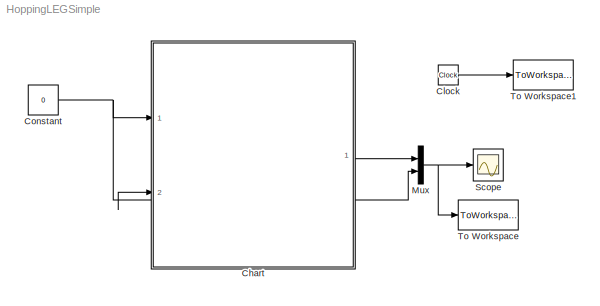
MODEL HoppingLEGSimple
KIND model
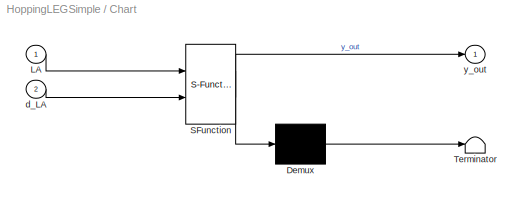
BLOCK [SubSystem] Chart
  ErrorFcn = Stateflow.Translate.translate
  FunctionWithSeparateData = off
  MaskDescription = Stateflow diagram
  MaskDisplay = plot(sf('Private','sfblk','xIcon'),sf('Private','sfblk','yIcon'));text(0.5,0,sf('Private', 'sfblk', 'tIcon'),'HorizontalAl','Center','VerticalAl','Bottom');
  MaskHideContents = off
  MaskIconFrame = off
  MaskIconOpaque = off
  MaskIconRotate = none
  MaskIconUnits = autoscale
  MaskPortRotate = default
  MaskSelfModifiable = on
  MaskType = Stateflow
  MinAlgLoopOccurrences = off
  Opaque = off
  PermitHierarchicalResolution = ExplicitOnly
  Ports = [2, 1]
  PropExecContextOutsideSubsystem = off
  RTWSystemCode = Auto
  RequestExecContextInheritance = off
  SID = 1
  TreatAsAtomicUnit = on
BLOCK [Demux] Chart/ Demux 
  Outputs = 1
  Ports = [1, 1]
  SID = 1::14
BLOCK [S-Function] Chart/ SFunction 
  EnableBusSupport = on
  FunctionName = sf_sfun
  PortCounts = [2 2]
  Ports = [2, 2]
  SID = 1::13
  Tag = Stateflow S-Function HoppingLEGSimple 1
BLOCK [Terminator] Chart/ Terminator 
  SID = 1::18
BLOCK [Inport] Chart/LA
  IconDisplay = Port number
  SID = 1::25
BLOCK [Inport] Chart/d_LA
  IconDisplay = Port number
  Port = 2
  SID = 1::24
BLOCK [Outport] Chart/y_out
  IconDisplay = Port number
  SID = 1::20
BLOCK [Clock] Clock
  Decimation = 10
  SID = 14
BLOCK [Constant] Constant
  SID = 19
  Value = 0
BLOCK [Mux] Mux
  DisplayOption = bar
  Inputs = 2
  Ports = [2, 1]
  SID = 7
BLOCK [Scope] Scope
  DataFormat = StructureWithTime
  Floating = off
  NumInputPorts = 1
  Ports = [1]
  SID = 2
  SampleTime = 0
  TimeRange = 9.9
  YMax = 8
  YMin = -0.5
BLOCK [ToWorkspace] To Workspace
  MaxDataPoints = inf
  Ports = [1]
  SID = 13
  SampleTime = 0.001
  SaveFormat = Array
  VariableName = output
BLOCK [ToWorkspace] To Workspace1
  MaxDataPoints = inf
  Ports = [1]
  SID = 15
  SampleTime = 0.001
  SaveFormat = Array
  VariableName = t_s
LINE Chart/ Demux :1 -> Chart/ Terminator :1
LINE Chart/ SFunction :1 -> Chart/ Demux :1
LINE Chart/ SFunction :2 -> Chart/y_out:1
LINE Chart/LA:1 -> Chart/ SFunction :1
LINE Chart/d_LA:1 -> Chart/ SFunction :2
LINE Chart:1 -> Mux:1
LINE Clock:1 -> To Workspace1:1
NET Constant:1 -> Chart:1, Chart:2, Mux:2
NET Mux:1 -> Scope:1, To Workspace:1
note: NET lines group one-source signal fan-out (src -> all destinations, sorted); 1:1 wires keep LINE
CHART Chart states=1 transitions=1
  STATE_LABEL 'Stancedown\\ndu:\\nl_dot = lv;\\nlv_dot =k/mass*(l0+LA-l)-9.81-c/mass*lv+c/mass*d_LA;\\ny_out = l;'
